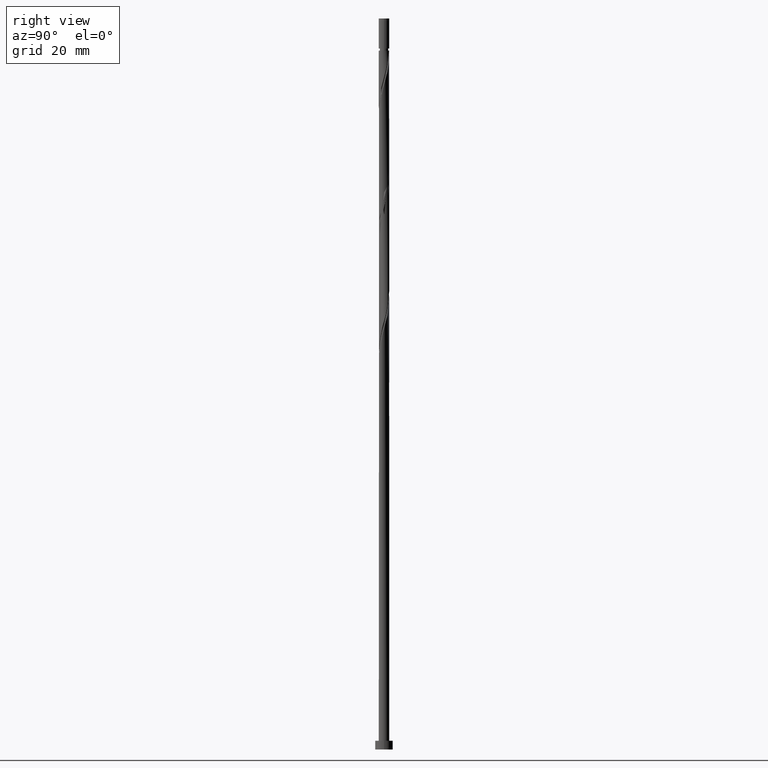
[diagram: clean part render]
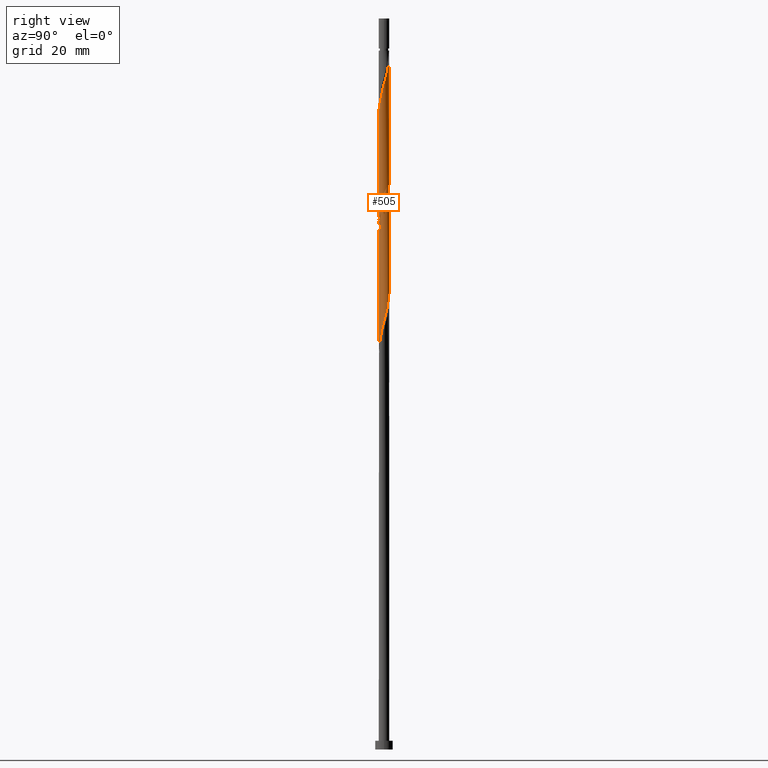
[diagram: same view with one face highlighted and labeled with its STEP entity id]
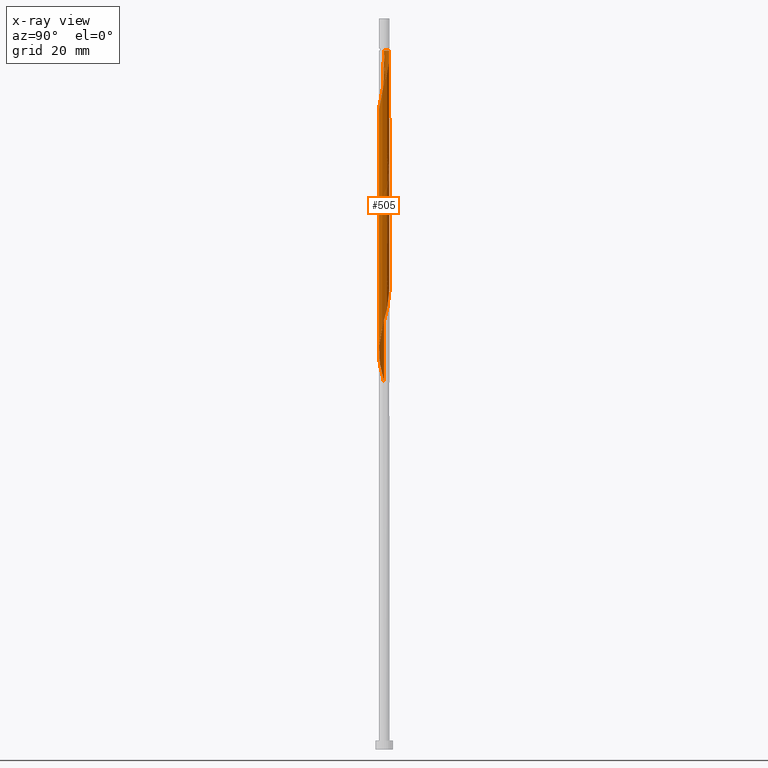
[diagram: x-ray of the same camera — body ghosted, the highlighted face saturated]
A machine part, right view. The second image highlights one B-rep face of the part: STEP entity #505.
The next image is the same camera in x-ray: the body ghosted, the highlighted face saturated — about 0% of this face is hidden behind the body in this view.
In plain terms, the highlighted cylindrical surface (bore or boss wall) has radius 0.9 mm, axis along (-0, -0, -1).
Its self-contained STEP definition (entity closure, byte-faithful):
#1 = DIRECTION ( 'NONE',  ( -0.000000000000000000, -0.000000000000000000, -1.000000000000000000 ) ) ;
#13 = CARTESIAN_POINT ( 'NONE',  ( 0.000000000000000000, 0.000000000000000000, 119.5015639847058679 ) ) ;
#14 = CARTESIAN_POINT ( 'NONE',  ( -0.1022209176141321840, -0.8941760922783202892, 108.0432306513725536 ) ) ;
#20 = CARTESIAN_POINT ( 'NONE',  ( -0.9000000000000011324, -4.235551536255573486E-16, 103.2117615432356246 ) ) ;
#22 = CARTESIAN_POINT ( 'NONE',  ( 0.9000000000000000222, 1.102182119232617788E-16, 119.5015639847058821 ) ) ;
#23 = ORIENTED_EDGE ( 'NONE', *, *, #828, .T. ) ;
#26 = CARTESIAN_POINT ( 'NONE',  ( -0.9000000000000010214, 1.008286162170575790E-15, 62.87469975950946122 ) ) ;
#34 = CARTESIAN_POINT ( 'NONE',  ( -0.8779858894525452984, -0.2438444975412146498, 63.77239731803920364 ) ) ;
#54 = CARTESIAN_POINT ( 'NONE',  ( 0.6633197067675512537, -0.6082819795241444227, 111.1682306513725536 ) ) ;
#57 = CYLINDRICAL_SURFACE ( 'NONE', #535, 0.9000000000000000222 ) ;
#64 =( BOUNDED_CURVE ( )  B_SPLINE_CURVE ( 2, ( #666, #892, #1231, #204, #1111, #423, #1311, #1318, #105, #875, #750, #313, #758, #673, #1119, #554, #999, #1453, #1008, #1095, #90, #986, #1438, #1136, #1253, #1267, #1021, #900, #1368, #1246, #1348, #1015, #1354, #345, #126, #1376, #912, #927, #1361, #816, #370, #1157, #457, #243, #452, #697, #801, #262, #1149, #132, #920, #237, #1028, #705, #152, #352, #121, #586, #249, #34, #599, #579, #26 ),
 .UNSPECIFIED., .F., .T. ) 
 B_SPLINE_CURVE_WITH_KNOTS ( ( 3, 2, 2, 2, 2, 2, 2, 2, 2, 2, 2, 2, 2, 2, 2, 2, 2, 2, 2, 2, 2, 2, 2, 2, 2, 2, 2, 2, 2, 2, 2, 3 ),
 ( 0.5545322023138555823, 0.5625000000000000000, 0.5749999999999999556, 0.5875000000000000222, 0.5999999999999999778, 0.6125000000000000444, 0.6250000000000000000, 0.6374999999999999556, 0.6500000000000000222, 0.6624999999999999778, 0.6750000000000000444, 0.6875000000000000000, 0.6999999999999999556, 0.7125000000000000222, 0.7249999999999999778, 0.7375000000000000444, 0.7500000000000000000, 0.7624999999999999556, 0.7750000000000000222, 0.7874999999999999778, 0.8000000000000000444, 0.8125000000000000000, 0.8249999999999999556, 0.8375000000000000222, 0.8499999999999999778, 0.8625000000000000444, 0.8750000000000000000, 0.8874999999999999556, 0.8999999999999999112, 0.9124999999999999778, 0.9250000000000000444, 0.9295322023138551382 ),
 .UNSPECIFIED. ) 
 CURVE ( )  GEOMETRIC_REPRESENTATION_ITEM ( )  RATIONAL_B_SPLINE_CURVE ( ( 0.9039174447099478371, 0.9019565955404776902, 0.9090909090909258250, 0.8978984914501417780, 0.9090909090909258250, 0.8978984914501417780, 0.9090909090909258250, 0.8978984914501417780, 0.9090909090909258250, 0.8978984914501417780, 0.9090909090909258250, 0.8978984914501417780, 0.9090909090909258250, 0.8978984914501417780, 0.9090909090909258250, 0.8978984914501417780, 0.9090909090909258250, 0.8978984914501417780, 0.9090909090909258250, 0.8978984914501417780, 0.9090909090909258250, 0.8978984914501417780, 0.9090909090909258250, 0.8978984914501417780, 0.9090909090909258250, 0.8978984914501417780, 0.9090909090909258250, 0.8978984914501417780, 0.9090909090909258250, 0.8978984914501417780, 0.9090909090909258250, 0.8978984914501417780, 0.9090909090909258250, 0.8978984914501417780, 0.9090909090909258250, 0.8978984914501417780, 0.9090909090909258250, 0.8978984914501417780, 0.9090909090909258250, 0.8978984914501417780, 0.9090909090909258250, 0.8978984914501417780, 0.9090909090909258250, 0.8978984914501417780, 0.9090909090909258250, 0.8978984914501417780, 0.9090909090909258250, 0.8978984914501417780, 0.9090909090909258250, 0.8978984914501417780, 0.9090909090909258250, 0.8978984914501417780, 0.9090909090909258250, 0.8978984914501417780, 0.9090909090909258250, 0.8978984914501417780, 0.9090909090909258250, 0.8978984914501417780, 0.9090909090909258250, 0.8978984914501417780, 0.9090909090909258250, 0.9050328050005902458, 0.9039174447099480592 ) ) 
 REPRESENTATION_ITEM ( '' )  );
#83 = CARTESIAN_POINT ( 'NONE',  ( -0.9000000000000000222, 0.000000000000000000, 125.0000000000000000 ) ) ;
#89 = EDGE_CURVE ( 'NONE', #1442, #455, #420, .T. ) ;
#90 = CARTESIAN_POINT ( 'NONE',  ( -0.8941760922783199561, -0.1022209176141319620, 84.08489731803918232 ) ) ;
#105 = CARTESIAN_POINT ( 'NONE',  ( 0.3735334782763722328, -0.8188239985532648202, 90.33489731803921075 ) ) ;
#107 = CARTESIAN_POINT ( 'NONE',  ( 0.5669773058811189426, 0.7133415000367582248, 97.10573065137249671 ) ) ;
#108 = EDGE_CURVE ( 'NONE', #1130, #1442, #534, .T. ) ;
#121 = CARTESIAN_POINT ( 'NONE',  ( -0.6633197067675514758, -0.6082819795241442007, 65.33489731803921075 ) ) ;
#126 = CARTESIAN_POINT ( 'NONE',  ( 0.4428850604632761367, 0.7834876024663327554, 76.79323065137252513 ) ) ;
#132 = CARTESIAN_POINT ( 'NONE',  ( 0.2438444975412145943, -0.8779858894525452984, 68.98073065137252513 ) ) ;
#137 = VECTOR ( 'NONE', #658, 1000.000000000000000 ) ;
#143 = CARTESIAN_POINT ( 'NONE',  ( 0.4428850604632758037, -0.7834876024663331995, 110.1265639847058679 ) ) ;
#152 = CARTESIAN_POINT ( 'NONE',  ( -0.4428850604632759702, -0.7834876024663327554, 66.37656398470586794 ) ) ;
#154 = CARTESIAN_POINT ( 'NONE',  ( -0.1790977386791912929, 0.8819999999999982299, 119.5015639847058821 ) ) ;
#168 = CARTESIAN_POINT ( 'NONE',  ( 0.1022209176141322673, 0.8941760922783202892, 118.4598973180391965 ) ) ;
#190 = CARTESIAN_POINT ( 'NONE',  ( 0.9000000000000009104, -1.113237881653014943E-15, 94.12469975950945411 ) ) ;
#196 = LINE ( 'NONE', #83, #137 ) ;
#198 = CARTESIAN_POINT ( 'NONE',  ( 0.6633197067675514758, 0.6082819795241442007, 96.58489731803918232 ) ) ;
#204 = CARTESIAN_POINT ( 'NONE',  ( 0.8536337048959070639, -0.3187928150454331089, 92.93906398470585373 ) ) ;
#223 = CARTESIAN_POINT ( 'NONE',  ( -0.2438444975412146498, 0.8779858894525452984, 100.2307306513725251 ) ) ;
#231 = CARTESIAN_POINT ( 'NONE',  ( 0.03940266231295062871, 0.9103662951040949469, 99.18906398470588215 ) ) ;
#236 = DIRECTION ( 'NONE',  ( -1.000000000000000000, 0.000000000000000000, 0.000000000000000000 ) ) ;
#237 = CARTESIAN_POINT ( 'NONE',  ( -0.03940266231295073973, -0.9103662951040948359, 67.93906398470585373 ) ) ;
#243 = CARTESIAN_POINT ( 'NONE',  ( 0.8536337048959070639, -0.3187928150454331089, 72.10573065137253934 ) ) ;
#249 = CARTESIAN_POINT ( 'NONE',  ( -0.8188239985532648202, -0.3735334782763722328, 64.29323065137252513 ) ) ;
#254 = CARTESIAN_POINT ( 'NONE',  ( 0.3187928150454329423, -0.8536337048959076190, 109.6057306513724967 ) ) ;
#259 = ORIENTED_EDGE ( 'NONE', *, *, #89, .F. ) ;
#262 = CARTESIAN_POINT ( 'NONE',  ( 0.5032224590115301766, -0.7596621076539842310, 70.02239731803919653 ) ) ;
#269 = CARTESIAN_POINT ( 'NONE',  ( 0.8779858894525452984, -0.2438444975412148441, 112.7307306513725109 ) ) ;
#274 = VERTEX_POINT ( 'NONE', #22 ) ;
#276 = CARTESIAN_POINT ( 'NONE',  ( 0.7596621076539842310, -0.5032224590115303986, 111.6890639847058821 ) ) ;
#278 = DIRECTION ( 'NONE',  ( -1.000000000000000000, 0.000000000000000000, 0.000000000000000000 ) ) ;
#292 = FACE_OUTER_BOUND ( 'NONE', #702, .T. ) ;
#296 = CARTESIAN_POINT ( 'NONE',  ( -0.03940266231295416754, 0.9103662951040955020, 118.9807306513725678 ) ) ;
#313 = CARTESIAN_POINT ( 'NONE',  ( -0.03940266231295073973, -0.9103662951040948359, 88.77239731803916811 ) ) ;
#315 = CARTESIAN_POINT ( 'NONE',  ( -0.3735334782763723993, 0.8188239985532648202, 100.7515639847058537 ) ) ;
#331 = CARTESIAN_POINT ( 'NONE',  ( -0.9000000000000011324, 0.09045340337332885561, 104.2070618507683122 ) ) ;
#333 = VERTEX_POINT ( 'NONE', #154 ) ;
#340 = CARTESIAN_POINT ( 'NONE',  ( -0.9000000000000011324, 5.434999758912025528E-16, 104.5413664261761397 ) ) ;
#345 = CARTESIAN_POINT ( 'NONE',  ( 0.3187928150454332754, 0.8536337048959070639, 77.31406398470585373 ) ) ;
#347 = CARTESIAN_POINT ( 'NONE',  ( 0.8779858894525455204, 0.2438444975412144833, 95.02239731803918232 ) ) ;
#352 = CARTESIAN_POINT ( 'NONE',  ( -0.5669773058811188315, -0.7133415000367582248, 65.85573065137253934 ) ) ;
#358 = CARTESIAN_POINT ( 'NONE',  ( -0.7133415000367587799, -0.5669773058811188315, 105.4390639847058395 ) ) ;
#361 = ORIENTED_EDGE ( 'NONE', *, *, #1415, .T. ) ;
#370 = CARTESIAN_POINT ( 'NONE',  ( 0.8941760922783199561, 0.1022209176141318787, 73.66823065137252513 ) ) ;
#389 = DIRECTION ( 'NONE',  ( -0.000000000000000000, -0.000000000000000000, -1.000000000000000000 ) ) ;
#394 = CARTESIAN_POINT ( 'NONE',  ( 0.9103662951040949469, 0.03940266231295040666, 113.7723973180391965 ) ) ;
#407 = CARTESIAN_POINT ( 'NONE',  ( 0.8536337048959076190, 0.3187928150454328313, 114.8140639847058821 ) ) ;
#420 =( BOUNDED_CURVE ( )  B_SPLINE_CURVE ( 2, ( #340, #331, #1113, #425, #1226, #1010, #454, #541, #315, #223, #994, #231, #902, #768, #877, #107, #198, #1097, #548, #347, #660, #439, #885 ),
 .UNSPECIFIED., .F., .T. ) 
 B_SPLINE_CURVE_WITH_KNOTS ( ( 3, 2, 2, 2, 2, 2, 2, 2, 2, 2, 2, 3 ),
 ( 0.4295322023138551382, 0.4375000000000000000, 0.4500000000000000111, 0.4625000000000000222, 0.4749999999999999778, 0.4874999999999999889, 0.5000000000000000000, 0.5124999999999999556, 0.5250000000000000222, 0.5374999999999999778, 0.5500000000000000444, 0.5545322023138555823 ),
 .UNSPECIFIED. ) 
 CURVE ( )  GEOMETRIC_REPRESENTATION_ITEM ( )  RATIONAL_B_SPLINE_CURVE ( ( 0.9039174447099480592, 0.9019565955404773572, 0.9090909090909258250, 0.8978984914501417780, 0.9090909090909258250, 0.8978984914501417780, 0.9090909090909258250, 0.8978984914501417780, 0.9090909090909258250, 0.8978984914501417780, 0.9090909090909258250, 0.8978984914501417780, 0.9090909090909258250, 0.8978984914501417780, 0.9090909090909258250, 0.8978984914501417780, 0.9090909090909258250, 0.8978984914501417780, 0.9090909090909258250, 0.8978984914501417780, 0.9090909090909258250, 0.9050328050005899128, 0.9039174447099478371 ) ) 
 REPRESENTATION_ITEM ( '' )  );
#423 = CARTESIAN_POINT ( 'NONE',  ( 0.7133415000367582248, -0.5669773058811188315, 91.89739731803921075 ) ) ;
#425 = CARTESIAN_POINT ( 'NONE',  ( -0.8536337048959073970, 0.3187928150454330534, 103.3557306513725251 ) ) ;
#439 = CARTESIAN_POINT ( 'NONE',  ( 0.9000000000000012434, 0.05127636370178526720, 94.31421084871671212 ) ) ;
#452 = CARTESIAN_POINT ( 'NONE',  ( 0.7834876024663327554, -0.4428850604632761367, 71.58489731803918232 ) ) ;
#454 = CARTESIAN_POINT ( 'NONE',  ( -0.6082819795241442007, 0.6633197067675514758, 101.7932306513725251 ) ) ;
#455 = VERTEX_POINT ( 'NONE', #190 ) ;
#457 = CARTESIAN_POINT ( 'NONE',  ( 0.8820000000000008944, -0.1790977386791919590, 72.62656398470585373 ) ) ;
#465 = CARTESIAN_POINT ( 'NONE',  ( -0.5032224590115302876, -0.7596621076539842310, 106.4807306513725536 ) ) ;
#470 = CARTESIAN_POINT ( 'NONE',  ( 0.03940266231295046218, -0.9103662951040949469, 108.5640639847058537 ) ) ;
#478 = CARTESIAN_POINT ( 'NONE',  ( -0.3735334782763726214, -0.8188239985532647092, 107.0015639847058537 ) ) ;
#505 = ADVANCED_FACE ( 'NONE', ( #292 ), #57, .T. ) ;
#534 = LINE ( 'NONE', #1336, #755 ) ;
#535 = AXIS2_PLACEMENT_3D ( 'NONE', #1186, #826, #278 ) ;
#541 = CARTESIAN_POINT ( 'NONE',  ( -0.5032224590115301766, 0.7596621076539841200, 101.2723973180392250 ) ) ;
#548 = CARTESIAN_POINT ( 'NONE',  ( 0.8188239985532648202, 0.3735334782763722328, 95.54323065137252513 ) ) ;
#549 = EDGE_CURVE ( 'NONE', #274, #455, #1075, .T. ) ;
#554 = CARTESIAN_POINT ( 'NONE',  ( -0.5669773058811188315, -0.7133415000367582248, 86.68906398470586794 ) ) ;
#558 = ORIENTED_EDGE ( 'NONE', *, *, #108, .F. ) ;
#572 = CARTESIAN_POINT ( 'NONE',  ( -0.6082819795241444227, -0.6633197067675512537, 105.9598973180392250 ) ) ;
#576 = ORIENTED_EDGE ( 'NONE', *, *, #549, .F. ) ;
#579 = CARTESIAN_POINT ( 'NONE',  ( -0.9000000000000011324, -0.05127636370179039504, 63.06421084871674765 ) ) ;
#586 = CARTESIAN_POINT ( 'NONE',  ( -0.7596621076539841200, -0.5032224590115301766, 64.81406398470586794 ) ) ;
#592 = CARTESIAN_POINT ( 'NONE',  ( 0.5669773058811188315, -0.7133415000367587799, 110.6473973180392250 ) ) ;
#599 = CARTESIAN_POINT ( 'NONE',  ( -0.8941760922783199561, -0.1022209176141319620, 63.25156398470585373 ) ) ;
#620 = CARTESIAN_POINT ( 'NONE',  ( 0.8820000000000013385, 0.1790977386791916814, 114.2932306513725678 ) ) ;
#630 = CIRCLE ( 'NONE', #1002, 0.8999999999999973577 ) ;
#658 = DIRECTION ( 'NONE',  ( -0.000000000000000000, -0.000000000000000000, -1.000000000000000000 ) ) ;
#660 = CARTESIAN_POINT ( 'NONE',  ( 0.8941760922783199561, 0.1022209176141318787, 94.50156398470585373 ) ) ;
#666 = CARTESIAN_POINT ( 'NONE',  ( 0.9000000000000009104, -1.113237881653014943E-15, 94.12469975950943990 ) ) ;
#673 = CARTESIAN_POINT ( 'NONE',  ( -0.3187928150454331089, -0.8536337048959070639, 87.73073065137256776 ) ) ;
#677 = VERTEX_POINT ( 'NONE', #1277 ) ;
#686 = CARTESIAN_POINT ( 'NONE',  ( -0.9000000000000011324, -0.09045340337332961889, 103.5460661186434379 ) ) ;
#691 = CARTESIAN_POINT ( 'NONE',  ( -0.2438444975412148441, -0.8779858894525452984, 107.5223973180391965 ) ) ;
#697 = CARTESIAN_POINT ( 'NONE',  ( 0.7133415000367582248, -0.5669773058811188315, 71.06406398470586794 ) ) ;
#702 = EDGE_LOOP ( 'NONE', ( #558, #361, #1154, #23, #1351, #576, #1204, #259 ) ) ;
#705 = CARTESIAN_POINT ( 'NONE',  ( -0.3187928150454331089, -0.8536337048959070639, 66.89739731803921075 ) ) ;
#712 = CARTESIAN_POINT ( 'NONE',  ( 0.7834876024663331995, 0.4428850604632758037, 115.3348973180391965 ) ) ;
#739 = CARTESIAN_POINT ( 'NONE',  ( 0.5032224590115303986, 0.7596621076539842310, 116.8973973180391965 ) ) ;
#750 = CARTESIAN_POINT ( 'NONE',  ( 0.1022209176141319065, -0.8941760922783199561, 89.29323065137251092 ) ) ;
#755 = VECTOR ( 'NONE', #1, 1000.000000000000000 ) ;
#758 = CARTESIAN_POINT ( 'NONE',  ( -0.1790977386791918757, -0.8820000000000008944, 88.25156398470588215 ) ) ;
#761 = VERTEX_POINT ( 'NONE', #1326 ) ;
#768 = CARTESIAN_POINT ( 'NONE',  ( 0.3187928150454332754, 0.8536337048959070639, 98.14739731803921075 ) ) ;
#796 = CARTESIAN_POINT ( 'NONE',  ( -0.7834876024663331995, -0.4428850604632759147, 104.9182306513725393 ) ) ;
#801 = CARTESIAN_POINT ( 'NONE',  ( 0.6082819795241442007, -0.6633197067675514758, 70.54323065137253934 ) ) ;
#808 = CARTESIAN_POINT ( 'NONE',  ( -0.8820000000000013385, -0.1790977386791917925, 103.8765639847058821 ) ) ;
#816 = CARTESIAN_POINT ( 'NONE',  ( 0.8779858894525455204, 0.2438444975412144833, 74.18906398470586794 ) ) ;
#826 = DIRECTION ( 'NONE',  ( -0.000000000000000000, -0.000000000000000000, -1.000000000000000000 ) ) ;
#828 = EDGE_CURVE ( 'NONE', #677, #761, #196, .T. ) ;
#831 = CARTESIAN_POINT ( 'NONE',  ( -0.8999999999999973577, 0.000000000000000000, 119.5015639847058679 ) ) ;
#837 = CARTESIAN_POINT ( 'NONE',  ( 0.2438444975412148441, 0.8779858894525452984, 117.9390639847058537 ) ) ;
#875 = CARTESIAN_POINT ( 'NONE',  ( 0.2438444975412145943, -0.8779858894525452984, 89.81406398470588215 ) ) ;
#877 = CARTESIAN_POINT ( 'NONE',  ( 0.4428850604632761367, 0.7834876024663327554, 97.62656398470586794 ) ) ;
#885 = CARTESIAN_POINT ( 'NONE',  ( 0.9000000000000009104, -1.113237881653014943E-15, 94.12469975950943990 ) ) ;
#892 = CARTESIAN_POINT ( 'NONE',  ( 0.9000000000000002442, -0.09045340337333354630, 93.79039518410161236 ) ) ;
#900 = CARTESIAN_POINT ( 'NONE',  ( -0.5032224590115301766, 0.7596621076539841200, 80.43906398470586794 ) ) ;
#902 = CARTESIAN_POINT ( 'NONE',  ( 0.1790977386791919868, 0.8820000000000008944, 98.66823065137252513 ) ) ;
#912 = CARTESIAN_POINT ( 'NONE',  ( 0.6633197067675514758, 0.6082819795241442007, 75.75156398470588215 ) ) ;
#920 = CARTESIAN_POINT ( 'NONE',  ( 0.1022209176141319065, -0.8941760922783199561, 68.45989731803918232 ) ) ;
#927 = CARTESIAN_POINT ( 'NONE',  ( 0.7596621076539842310, 0.5032224590115299545, 75.23073065137255355 ) ) ;
#935 = CARTESIAN_POINT ( 'NONE',  ( 0.8941760922783202892, -0.1022209176141322257, 113.2515639847058821 ) ) ;
#950 = CARTESIAN_POINT ( 'NONE',  ( 0.6082819795241446448, 0.6633197067675514758, 116.3765639847058537 ) ) ;
#952 = CARTESIAN_POINT ( 'NONE',  ( 0.9000000000000000222, 1.102182119232617788E-16, 125.0000000000000000 ) ) ;
#986 = CARTESIAN_POINT ( 'NONE',  ( -0.9103662951040949469, 0.03940266231295067034, 83.56406398470586794 ) ) ;
#994 = CARTESIAN_POINT ( 'NONE',  ( -0.1022209176141320314, 0.8941760922783198451, 99.70989731803919653 ) ) ;
#999 = CARTESIAN_POINT ( 'NONE',  ( -0.6633197067675514758, -0.6082819795241442007, 86.16823065137255355 ) ) ;
#1002 = AXIS2_PLACEMENT_3D ( 'NONE', #13, #1353, #236 ) ;
#1008 = CARTESIAN_POINT ( 'NONE',  ( -0.8188239985532648202, -0.3735334782763722328, 85.12656398470586794 ) ) ;
#1010 = CARTESIAN_POINT ( 'NONE',  ( -0.7133415000367582248, 0.5669773058811188315, 102.3140639847058679 ) ) ;
#1015 = CARTESIAN_POINT ( 'NONE',  ( 0.03940266231295062871, 0.9103662951040949469, 78.35573065137252513 ) ) ;
#1021 = CARTESIAN_POINT ( 'NONE',  ( -0.6082819795241442007, 0.6633197067675514758, 80.95989731803921075 ) ) ;
#1023 = EDGE_CURVE ( 'NONE', #455, #761, #64, .T. ) ;
#1028 = CARTESIAN_POINT ( 'NONE',  ( -0.1790977386791918757, -0.8820000000000008944, 67.41823065137253934 ) ) ;
#1058 = CARTESIAN_POINT ( 'NONE',  ( 0.8188239985532647092, -0.3735334782763726214, 112.2098973180391965 ) ) ;
#1066 =( BOUNDED_CURVE ( )  B_SPLINE_CURVE ( 2, ( #20, #686, #808, #1127, #796, #358, #572, #465, #478, #691, #14, #470, #1259, #254, #143, #592, #54, #276, #1058, #269, #935, #394, #620, #407, #712, #1385, #950, #739, #1416, #837, #168, #296, #1295 ),
 .UNSPECIFIED., .F., .T. ) 
 B_SPLINE_CURVE_WITH_KNOTS ( ( 3, 2, 2, 2, 2, 2, 2, 2, 2, 2, 2, 2, 2, 2, 2, 2, 3 ),
 ( 0.5545322023138552492, 0.5625000000000000000, 0.5749999999999999556, 0.5875000000000001332, 0.6000000000000000888, 0.6125000000000001554, 0.6250000000000001110, 0.6375000000000000666, 0.6500000000000001332, 0.6625000000000001998, 0.6750000000000002665, 0.6875000000000002220, 0.7000000000000001776, 0.7125000000000003553, 0.7250000000000003109, 0.7375000000000003775, 0.7500000000000003331 ),
 .UNSPECIFIED. ) 
 CURVE ( )  GEOMETRIC_REPRESENTATION_ITEM ( )  RATIONAL_B_SPLINE_CURVE ( ( 0.9039174447099489473, 0.9019565955404784674, 0.9090909090909268242, 0.8978984914501428882, 0.9090909090909268242, 0.8978984914501428882, 0.9090909090909268242, 0.8978984914501428882, 0.9090909090909268242, 0.8978984914501428882, 0.9090909090909268242, 0.8978984914501428882, 0.9090909090909268242, 0.8978984914501428882, 0.9090909090909268242, 0.8978984914501428882, 0.9090909090909268242, 0.8978984914501428882, 0.9090909090909268242, 0.8978984914501428882, 0.9090909090909268242, 0.8978984914501428882, 0.9090909090909268242, 0.8978984914501428882, 0.9090909090909268242, 0.8978984914501428882, 0.9090909090909268242, 0.8978984914501428882, 0.9090909090909268242, 0.8978984914501428882, 0.9090909090909268242, 0.8978984914501425552, 0.9090909090909271573 ) ) 
 REPRESENTATION_ITEM ( '' )  );
#1069 = EDGE_CURVE ( 'NONE', #677, #333, #1066, .T. ) ;
#1075 = LINE ( 'NONE', #952, #1243 ) ;
#1095 = CARTESIAN_POINT ( 'NONE',  ( -0.8779858894525452984, -0.2438444975412146498, 84.60573065137252513 ) ) ;
#1097 = CARTESIAN_POINT ( 'NONE',  ( 0.7596621076539842310, 0.5032224590115299545, 96.06406398470589636 ) ) ;
#1111 = CARTESIAN_POINT ( 'NONE',  ( 0.7834876024663327554, -0.4428850604632761367, 92.41823065137251092 ) ) ;
#1113 = CARTESIAN_POINT ( 'NONE',  ( -0.8820000000000008944, 0.1790977386791918202, 103.8765639847058964 ) ) ;
#1119 = CARTESIAN_POINT ( 'NONE',  ( -0.4428850604632759702, -0.7834876024663327554, 87.20989731803919653 ) ) ;
#1127 = CARTESIAN_POINT ( 'NONE',  ( -0.8536337048959073970, -0.3187928150454329423, 104.3973973180391965 ) ) ;
#1130 = VERTEX_POINT ( 'NONE', #831 ) ;
#1136 = CARTESIAN_POINT ( 'NONE',  ( -0.8536337048959073970, 0.3187928150454330534, 82.52239731803921075 ) ) ;
#1149 = CARTESIAN_POINT ( 'NONE',  ( 0.3735334782763722328, -0.8188239985532648202, 69.50156398470586794 ) ) ;
#1154 = ORIENTED_EDGE ( 'NONE', *, *, #1069, .F. ) ;
#1157 = CARTESIAN_POINT ( 'NONE',  ( 0.9103662951040948359, -0.03940266231295079524, 73.14739731803919653 ) ) ;
#1186 = CARTESIAN_POINT ( 'NONE',  ( 0.000000000000000000, 0.000000000000000000, 125.0000000000000000 ) ) ;
#1204 = ORIENTED_EDGE ( 'NONE', *, *, #549, .T. ) ;
#1226 = CARTESIAN_POINT ( 'NONE',  ( -0.7834876024663328664, 0.4428850604632759702, 102.8348973180391823 ) ) ;
#1231 = CARTESIAN_POINT ( 'NONE',  ( 0.8820000000000008944, -0.1790977386791919590, 93.45989731803919653 ) ) ;
#1243 = VECTOR ( 'NONE', #389, 1000.000000000000000 ) ;
#1246 = CARTESIAN_POINT ( 'NONE',  ( -0.2438444975412146498, 0.8779858894525452984, 79.39739731803921075 ) ) ;
#1253 = CARTESIAN_POINT ( 'NONE',  ( -0.7834876024663328664, 0.4428850604632759702, 82.00156398470588215 ) ) ;
#1259 = CARTESIAN_POINT ( 'NONE',  ( 0.1790977386791917370, -0.8820000000000013385, 109.0848973180391965 ) ) ;
#1266 = CARTESIAN_POINT ( 'NONE',  ( -0.9000000000000011324, 5.434999758912025528E-16, 104.5413664261761397 ) ) ;
#1267 = CARTESIAN_POINT ( 'NONE',  ( -0.7133415000367582248, 0.5669773058811188315, 81.48073065137253934 ) ) ;
#1277 = CARTESIAN_POINT ( 'NONE',  ( -0.9000000000000011324, -4.235551536255573486E-16, 103.2117615432356104 ) ) ;
#1295 = CARTESIAN_POINT ( 'NONE',  ( -0.1790977386791912929, 0.8819999999999983409, 119.5015639847058821 ) ) ;
#1311 = CARTESIAN_POINT ( 'NONE',  ( 0.6082819795241442007, -0.6633197067675514758, 91.37656398470589636 ) ) ;
#1318 = CARTESIAN_POINT ( 'NONE',  ( 0.5032224590115301766, -0.7596621076539842310, 90.85573065137255355 ) ) ;
#1326 = CARTESIAN_POINT ( 'NONE',  ( -0.9000000000000010214, 1.008286162170575790E-15, 62.87469975950946122 ) ) ;
#1336 = CARTESIAN_POINT ( 'NONE',  ( -0.9000000000000000222, 0.000000000000000000, 125.0000000000000000 ) ) ;
#1348 = CARTESIAN_POINT ( 'NONE',  ( -0.1022209176141320314, 0.8941760922783198451, 78.87656398470583952 ) ) ;
#1351 = ORIENTED_EDGE ( 'NONE', *, *, #1023, .F. ) ;
#1353 = DIRECTION ( 'NONE',  ( -0.000000000000000000, -0.000000000000000000, -1.000000000000000000 ) ) ;
#1354 = CARTESIAN_POINT ( 'NONE',  ( 0.1790977386791919868, 0.8820000000000008944, 77.83489731803918232 ) ) ;
#1361 = CARTESIAN_POINT ( 'NONE',  ( 0.8188239985532648202, 0.3735334782763722328, 74.70989731803919653 ) ) ;
#1368 = CARTESIAN_POINT ( 'NONE',  ( -0.3735334782763723993, 0.8188239985532648202, 79.91823065137253934 ) ) ;
#1376 = CARTESIAN_POINT ( 'NONE',  ( 0.5669773058811189426, 0.7133415000367582248, 76.27239731803921075 ) ) ;
#1385 = CARTESIAN_POINT ( 'NONE',  ( 0.7133415000367590020, 0.5669773058811188315, 115.8557306513725393 ) ) ;
#1415 = EDGE_CURVE ( 'NONE', #1130, #333, #630, .T. ) ;
#1416 = CARTESIAN_POINT ( 'NONE',  ( 0.3735334782763727324, 0.8188239985532647092, 117.4182306513725251 ) ) ;
#1438 = CARTESIAN_POINT ( 'NONE',  ( -0.8820000000000008944, 0.1790977386791918202, 83.04323065137253934 ) ) ;
#1442 = VERTEX_POINT ( 'NONE', #1266 ) ;
#1453 = CARTESIAN_POINT ( 'NONE',  ( -0.7596621076539841200, -0.5032224590115301766, 85.64739731803921075 ) ) ;